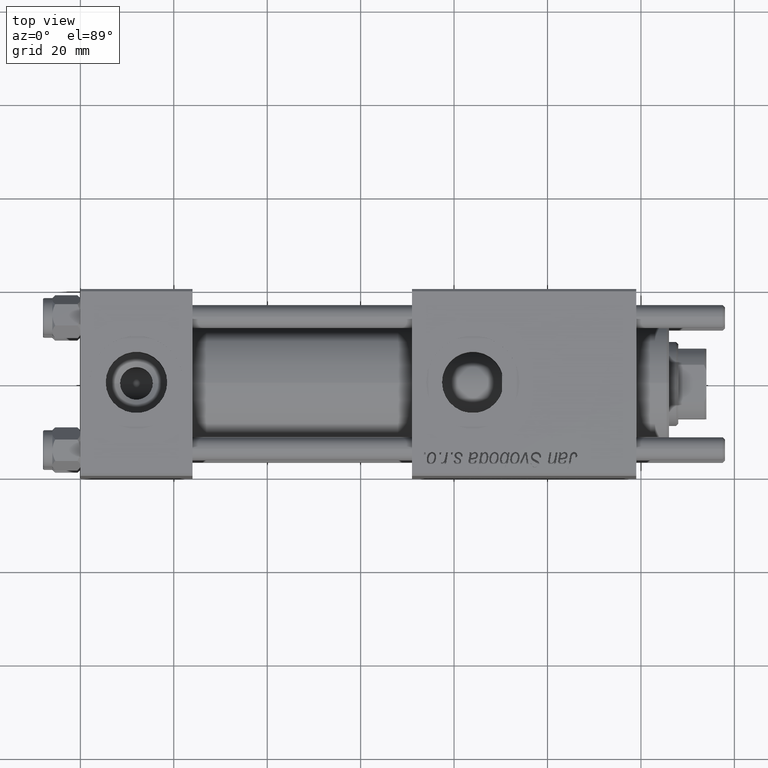
[diagram: clean part render]
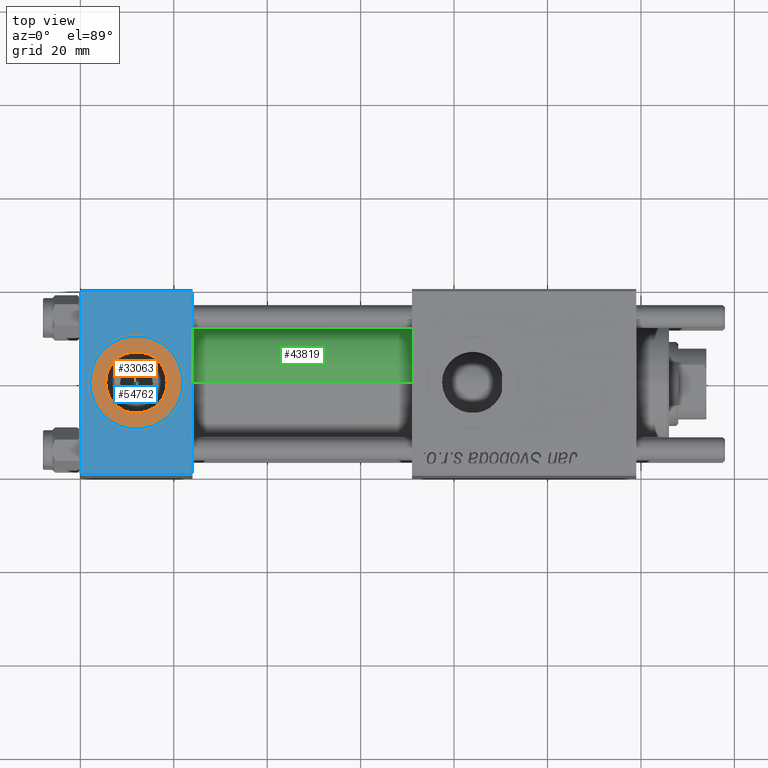
[diagram: same view with three faces highlighted in distinct colors, each labeled with its STEP entity id]
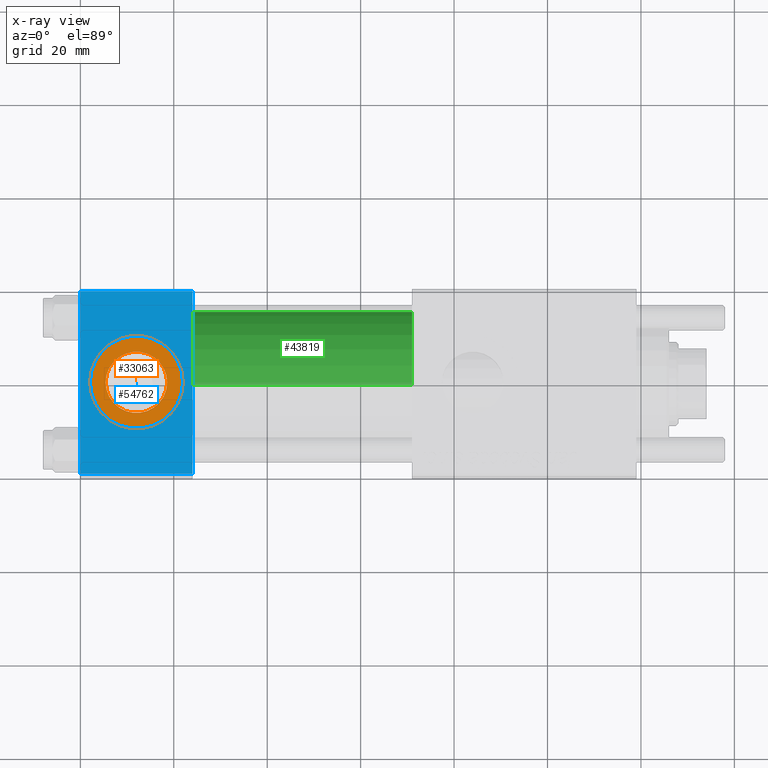
[diagram: x-ray of the same camera — body ghosted, the three highlighted faces saturated]
A machine part, top view with three faces highlighted in distinct colors.
The next image is the same camera in x-ray (body ghosted, the three faces saturated) — at least one of them is partly hidden behind the body in this view.
Their STEP definitions:

[orange] entity #33063 — the highlighted planar face has unit normal (0, 0, 1).
#422 = FACE_OUTER_BOUND ( 'NONE', #20156, .T. ) ;
#4975 = CIRCLE ( 'NONE', #32427, 9.999999999999998224 ) ;
#5760 = CARTESIAN_POINT ( 'NONE',  ( 2.000000000000003553, 1.224646799147354440E-15, 19.79999999999999716 ) ) ;
#5924 = DIRECTION ( 'NONE',  ( 1.000000000000000000, 0.000000000000000000, 0.000000000000000000 ) ) ;
#6091 = EDGE_CURVE ( 'NONE', #52699, #17422, #23597, .T. ) ;
#7849 = CARTESIAN_POINT ( 'NONE',  ( 18.57999999999999829, 1.540743955509788682E-30, 19.79999999999999716 ) ) ;
#8065 = EDGE_LOOP ( 'NONE', ( #52768, #19547 ) ) ;
#11465 = DIRECTION ( 'NONE',  ( 0.000000000000000000, 0.000000000000000000, 1.000000000000000000 ) ) ;
#14197 = PLANE ( 'NONE',  #39195 ) ;
#17422 = VERTEX_POINT ( 'NONE', #35966 ) ;
#17551 = CARTESIAN_POINT ( 'NONE',  ( 12.00000000000000000, 1.540743955509788682E-30, 19.79999999999999716 ) ) ;
#17919 = CARTESIAN_POINT ( 'NONE',  ( 22.00000000000000000, 1.540743955509788682E-30, 19.79999999999999716 ) ) ;
#19547 = ORIENTED_EDGE ( 'NONE', *, *, #28788, .F. ) ;
#20156 = EDGE_LOOP ( 'NONE', ( #30241, #23833 ) ) ;
#21390 = CIRCLE ( 'NONE', #38782, 6.579999999999999183 ) ;
#23597 = CIRCLE ( 'NONE', #43740, 6.579999999999999183 ) ;
#23833 = ORIENTED_EDGE ( 'NONE', *, *, #24839, .T. ) ;
#24839 = EDGE_CURVE ( 'NONE', #41323, #29448, #33200, .T. ) ;
#26846 = DIRECTION ( 'NONE',  ( 1.000000000000000000, 0.000000000000000000, 0.000000000000000000 ) ) ;
#28788 = EDGE_CURVE ( 'NONE', #17422, #52699, #21390, .T. ) ;
#29448 = VERTEX_POINT ( 'NONE', #17919 ) ;
#30241 = ORIENTED_EDGE ( 'NONE', *, *, #32167, .T. ) ;
#32167 = EDGE_CURVE ( 'NONE', #29448, #41323, #4975, .T. ) ;
#32427 = AXIS2_PLACEMENT_3D ( 'NONE', #36601, #37154, #5924 ) ;
#33063 = ADVANCED_FACE ( 'NONE', ( #48869, #422 ), #14197, .T. ) ;
#33200 = CIRCLE ( 'NONE', #54262, 9.999999999999998224 ) ;
#33317 = CARTESIAN_POINT ( 'NONE',  ( 12.00000000000000000, 1.540743955509788682E-30, 19.79999999999999716 ) ) ;
#34462 = DIRECTION ( 'NONE',  ( 0.000000000000000000, 0.000000000000000000, 1.000000000000000000 ) ) ;
#35417 = CARTESIAN_POINT ( 'NONE',  ( 12.00000000000000000, 1.540743955509788682E-30, 19.79999999999999716 ) ) ;
#35966 = CARTESIAN_POINT ( 'NONE',  ( 5.420000000000000817, 8.058175938389596335E-16, 19.79999999999999716 ) ) ;
#36601 = CARTESIAN_POINT ( 'NONE',  ( 12.00000000000000000, 1.540743955509788682E-30, 19.79999999999999716 ) ) ;
#37154 = DIRECTION ( 'NONE',  ( 0.000000000000000000, 0.000000000000000000, 1.000000000000000000 ) ) ;
#38651 = DIRECTION ( 'NONE',  ( 1.000000000000000000, 0.000000000000000000, -0.000000000000000000 ) ) ;
#38782 = AXIS2_PLACEMENT_3D ( 'NONE', #33317, #34462, #51356 ) ;
#39195 = AXIS2_PLACEMENT_3D ( 'NONE', #35417, #53437, #38651 ) ;
#41323 = VERTEX_POINT ( 'NONE', #5760 ) ;
#43740 = AXIS2_PLACEMENT_3D ( 'NONE', #17551, #11465, #50713 ) ;
#47478 = CARTESIAN_POINT ( 'NONE',  ( 12.00000000000000000, 1.540743955509788682E-30, 19.79999999999999716 ) ) ;
#48056 = DIRECTION ( 'NONE',  ( 0.000000000000000000, 0.000000000000000000, 1.000000000000000000 ) ) ;
#48869 = FACE_BOUND ( 'NONE', #8065, .T. ) ;
#50713 = DIRECTION ( 'NONE',  ( 1.000000000000000000, 0.000000000000000000, 0.000000000000000000 ) ) ;
#51356 = DIRECTION ( 'NONE',  ( 1.000000000000000000, 0.000000000000000000, 0.000000000000000000 ) ) ;
#52699 = VERTEX_POINT ( 'NONE', #7849 ) ;
#52768 = ORIENTED_EDGE ( 'NONE', *, *, #6091, .F. ) ;
#53437 = DIRECTION ( 'NONE',  ( 0.000000000000000000, 0.000000000000000000, 1.000000000000000000 ) ) ;
#54262 = AXIS2_PLACEMENT_3D ( 'NONE', #47478, #48056, #26846 ) ;

[blue] entity #54762 — the highlighted planar face has unit normal (0, 0, -1).
#397 = VERTEX_POINT ( 'NONE', #14099 ) ;
#955 = PLANE ( 'NONE',  #40574 ) ;
#2194 = DIRECTION ( 'NONE',  ( 1.000000000000000000, 0.000000000000000000, 0.000000000000000000 ) ) ;
#2515 = LINE ( 'NONE', #11159, #31014 ) ;
#2644 = CIRCLE ( 'NONE', #24636, 9.999999999999998224 ) ;
#7382 = LINE ( 'NONE', #25160, #54059 ) ;
#7496 = CARTESIAN_POINT ( 'NONE',  ( 2.000000000000003553, 1.224646799147354440E-15, 19.99999999999999645 ) ) ;
#7528 = DIRECTION ( 'NONE',  ( 0.000000000000000000, -1.000000000000000000, -2.602085213965210149E-16 ) ) ;
#9300 = FACE_BOUND ( 'NONE', #46756, .T. ) ;
#9367 = EDGE_CURVE ( 'NONE', #397, #17034, #2515, .T. ) ;
#10105 = CARTESIAN_POINT ( 'NONE',  ( 0.000000000000000000, 19.50000000000000000, 20.00000000000000000 ) ) ;
#11159 = CARTESIAN_POINT ( 'NONE',  ( 24.00000000000000000, 20.00000000000000000, 20.00000000000000000 ) ) ;
#11406 = ORIENTED_EDGE ( 'NONE', *, *, #9367, .F. ) ;
#13522 = CARTESIAN_POINT ( 'NONE',  ( 0.000000000000000000, 19.50000000000000000, 20.00000000000000000 ) ) ;
#14099 = CARTESIAN_POINT ( 'NONE',  ( 24.00000000000000000, 19.50000000000000000, 20.00000000000000000 ) ) ;
#14907 = DIRECTION ( 'NONE',  ( 0.000000000000000000, -1.000000000000000000, -2.602085213965210149E-16 ) ) ;
#15036 = CARTESIAN_POINT ( 'NONE',  ( 0.000000000000000000, 20.00000000000000000, 20.00000000000000000 ) ) ;
#15693 = CARTESIAN_POINT ( 'NONE',  ( 12.00000000000000000, 1.540743955509788682E-30, 19.99999999999999645 ) ) ;
#16723 = VECTOR ( 'NONE', #32965, 1000.000000000000000 ) ;
#17034 = VERTEX_POINT ( 'NONE', #36436 ) ;
#17341 = DIRECTION ( 'NONE',  ( 0.000000000000000000, 2.602085213965210149E-16, -1.000000000000000000 ) ) ;
#18113 = DIRECTION ( 'NONE',  ( 0.000000000000000000, 0.000000000000000000, 1.000000000000000000 ) ) ;
#18237 = EDGE_CURVE ( 'NONE', #23461, #17034, #7382, .T. ) ;
#18472 = CARTESIAN_POINT ( 'NONE',  ( 24.00000000000000000, 20.00000000000000000, 20.00000000000000000 ) ) ;
#18852 = EDGE_CURVE ( 'NONE', #40105, #53602, #28412, .T. ) ;
#21326 = CARTESIAN_POINT ( 'NONE',  ( 0.000000000000000000, -19.49999999999999289, 19.99999999999998934 ) ) ;
#22902 = ORIENTED_EDGE ( 'NONE', *, *, #18852, .F. ) ;
#23461 = VERTEX_POINT ( 'NONE', #21326 ) ;
#24150 = ORIENTED_EDGE ( 'NONE', *, *, #18237, .T. ) ;
#24636 = AXIS2_PLACEMENT_3D ( 'NONE', #31017, #18113, #27262 ) ;
#25160 = CARTESIAN_POINT ( 'NONE',  ( 24.00000000000000000, -19.49999999999999289, 19.99999999999998934 ) ) ;
#25687 = EDGE_CURVE ( 'NONE', #397, #51494, #32129, .T. ) ;
#27166 = ORIENTED_EDGE ( 'NONE', *, *, #49998, .T. ) ;
#27262 = DIRECTION ( 'NONE',  ( 1.000000000000000000, 0.000000000000000000, 0.000000000000000000 ) ) ;
#28412 = CIRCLE ( 'NONE', #47648, 9.999999999999998224 ) ;
#29656 = ORIENTED_EDGE ( 'NONE', *, *, #38630, .F. ) ;
#31014 = VECTOR ( 'NONE', #14907, 1000.000000000000000 ) ;
#31017 = CARTESIAN_POINT ( 'NONE',  ( 12.00000000000000000, 1.540743955509788682E-30, 19.99999999999999645 ) ) ;
#32129 = LINE ( 'NONE', #13522, #16723 ) ;
#32965 = DIRECTION ( 'NONE',  ( -1.000000000000000000, 0.000000000000000000, 0.000000000000000000 ) ) ;
#33096 = CARTESIAN_POINT ( 'NONE',  ( 22.00000000000000000, 1.540743955509788682E-30, 19.99999999999999645 ) ) ;
#34827 = DIRECTION ( 'NONE',  ( 0.000000000000000000, 1.000000000000000000, 2.602085213965210149E-16 ) ) ;
#36436 = CARTESIAN_POINT ( 'NONE',  ( 24.00000000000000000, -19.49999999999999289, 19.99999999999998934 ) ) ;
#37359 = LINE ( 'NONE', #15036, #41293 ) ;
#38630 = EDGE_CURVE ( 'NONE', #53602, #40105, #2644, .T. ) ;
#38930 = DIRECTION ( 'NONE',  ( 1.000000000000000000, 0.000000000000000000, 0.000000000000000000 ) ) ;
#40105 = VERTEX_POINT ( 'NONE', #33096 ) ;
#40574 = AXIS2_PLACEMENT_3D ( 'NONE', #18472, #17341, #34827 ) ;
#41293 = VECTOR ( 'NONE', #7528, 1000.000000000000000 ) ;
#41472 = DIRECTION ( 'NONE',  ( 0.000000000000000000, 0.000000000000000000, 1.000000000000000000 ) ) ;
#46756 = EDGE_LOOP ( 'NONE', ( #22902, #29656 ) ) ;
#47120 = ORIENTED_EDGE ( 'NONE', *, *, #25687, .T. ) ;
#47648 = AXIS2_PLACEMENT_3D ( 'NONE', #15693, #41472, #2194 ) ;
#49998 = EDGE_CURVE ( 'NONE', #51494, #23461, #37359, .T. ) ;
#51494 = VERTEX_POINT ( 'NONE', #10105 ) ;
#52071 = EDGE_LOOP ( 'NONE', ( #27166, #24150, #11406, #47120 ) ) ;
#53602 = VERTEX_POINT ( 'NONE', #7496 ) ;
#54059 = VECTOR ( 'NONE', #38930, 1000.000000000000000 ) ;
#54762 = ADVANCED_FACE ( 'NONE', ( #9300, #56584 ), #955, .F. ) ;
#56584 = FACE_OUTER_BOUND ( 'NONE', #52071, .T. ) ;

[green] entity #43819 — the highlighted cylindrical surface (partial cylindrical patch) has radius 15.5 mm, axis along (-1, -0, -0).
#715 = DIRECTION ( 'NONE',  ( 1.000000000000000000, 0.000000000000000000, 0.000000000000000000 ) ) ;
#945 = CIRCLE ( 'NONE', #55851, 15.50000000000000000 ) ;
#1006 = CARTESIAN_POINT ( 'NONE',  ( 71.00000000000001421, -2.602085213965210642E-15, 15.50000000000000000 ) ) ;
#4021 = EDGE_CURVE ( 'NONE', #13439, #6111, #33611, .T. ) ;
#4982 = CARTESIAN_POINT ( 'NONE',  ( 71.00000000000001421, -2.602085213965210642E-15, 0.000000000000000000 ) ) ;
#6111 = VERTEX_POINT ( 'NONE', #18933 ) ;
#6271 = DIRECTION ( 'NONE',  ( 1.000000000000000000, 0.000000000000000000, 0.000000000000000000 ) ) ;
#7074 = CARTESIAN_POINT ( 'NONE',  ( 71.00000000000001421, -7.038826752868131828E-16, -15.50000000000000000 ) ) ;
#12828 = DIRECTION ( 'NONE',  ( -1.000000000000000000, -0.000000000000000000, -0.000000000000000000 ) ) ;
#13369 = VERTEX_POINT ( 'NONE', #31021 ) ;
#13439 = VERTEX_POINT ( 'NONE', #32426 ) ;
#16250 = DIRECTION ( 'NONE',  ( 0.000000000000000000, 0.000000000000000000, 1.000000000000000000 ) ) ;
#17359 = ORIENTED_EDGE ( 'NONE', *, *, #37278, .F. ) ;
#18790 = DIRECTION ( 'NONE',  ( 0.000000000000000000, 0.000000000000000000, -1.000000000000000000 ) ) ;
#18933 = CARTESIAN_POINT ( 'NONE',  ( 24.00000000000000000, -2.602085213965210642E-15, 15.50000000000000000 ) ) ;
#22467 = DIRECTION ( 'NONE',  ( -1.000000000000000000, -0.000000000000000000, -0.000000000000000000 ) ) ;
#23925 = CARTESIAN_POINT ( 'NONE',  ( 71.00000000000001421, -2.602085213965210642E-15, 0.000000000000000000 ) ) ;
#24601 = DIRECTION ( 'NONE',  ( 0.000000000000000000, 0.000000000000000000, 1.000000000000000000 ) ) ;
#24711 = ORIENTED_EDGE ( 'NONE', *, *, #4021, .T. ) ;
#27747 = CARTESIAN_POINT ( 'NONE',  ( 71.00000000000001421, -7.038826752868131828E-16, -15.50000000000000000 ) ) ;
#30899 = AXIS2_PLACEMENT_3D ( 'NONE', #54971, #6271, #24601 ) ;
#31021 = CARTESIAN_POINT ( 'NONE',  ( 71.00000000000001421, -2.602085213965210642E-15, 15.50000000000000000 ) ) ;
#32426 = CARTESIAN_POINT ( 'NONE',  ( 24.00000000000000000, -7.038826752868131828E-16, -15.50000000000000000 ) ) ;
#33611 = CIRCLE ( 'NONE', #30899, 15.50000000000000000 ) ;
#34749 = ORIENTED_EDGE ( 'NONE', *, *, #48856, .T. ) ;
#35094 = CYLINDRICAL_SURFACE ( 'NONE', #41129, 15.50000000000000000 ) ;
#36009 = DIRECTION ( 'NONE',  ( -1.000000000000000000, -0.000000000000000000, -0.000000000000000000 ) ) ;
#37278 = EDGE_CURVE ( 'NONE', #13369, #6111, #40300, .T. ) ;
#40163 = VECTOR ( 'NONE', #36009, 1000.000000000000000 ) ;
#40300 = LINE ( 'NONE', #1006, #40163 ) ;
#41129 = AXIS2_PLACEMENT_3D ( 'NONE', #4982, #22467, #16250 ) ;
#42694 = EDGE_CURVE ( 'NONE', #47963, #13369, #945, .T. ) ;
#43819 = ADVANCED_FACE ( 'NONE', ( #55775 ), #35094, .T. ) ;
#44991 = VECTOR ( 'NONE', #12828, 1000.000000000000000 ) ;
#47963 = VERTEX_POINT ( 'NONE', #27747 ) ;
#48289 = ORIENTED_EDGE ( 'NONE', *, *, #42694, .F. ) ;
#48856 = EDGE_CURVE ( 'NONE', #47963, #13439, #54937, .T. ) ;
#48974 = EDGE_LOOP ( 'NONE', ( #48289, #34749, #24711, #17359 ) ) ;
#54937 = LINE ( 'NONE', #7074, #44991 ) ;
#54971 = CARTESIAN_POINT ( 'NONE',  ( 24.00000000000000000, -2.602085213965210642E-15, 0.000000000000000000 ) ) ;
#55775 = FACE_OUTER_BOUND ( 'NONE', #48974, .T. ) ;
#55851 = AXIS2_PLACEMENT_3D ( 'NONE', #23925, #715, #18790 ) ;